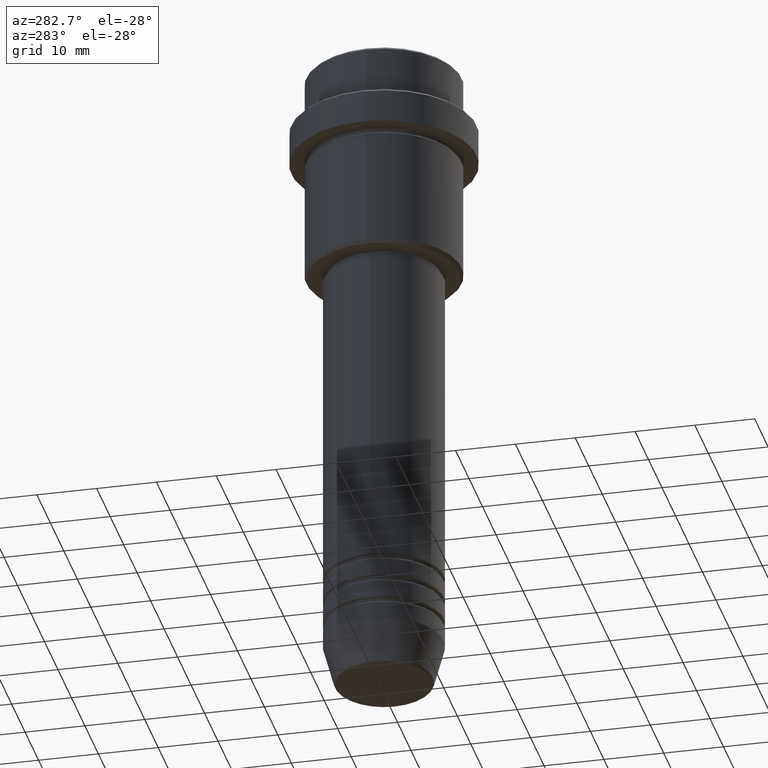
[diagram: clean part render]
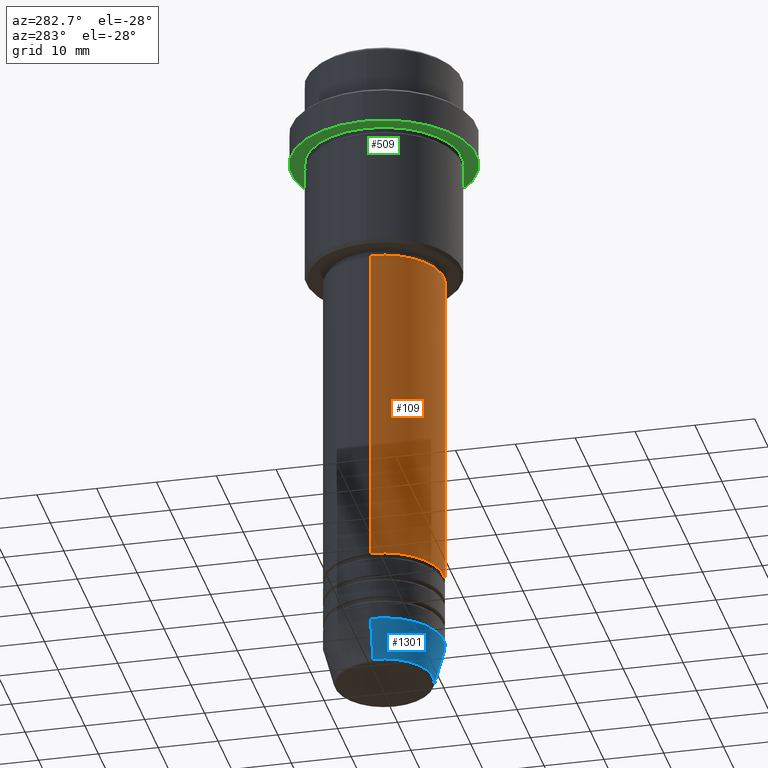
[diagram: same view with three faces highlighted in distinct colors, each labeled with its STEP entity id]
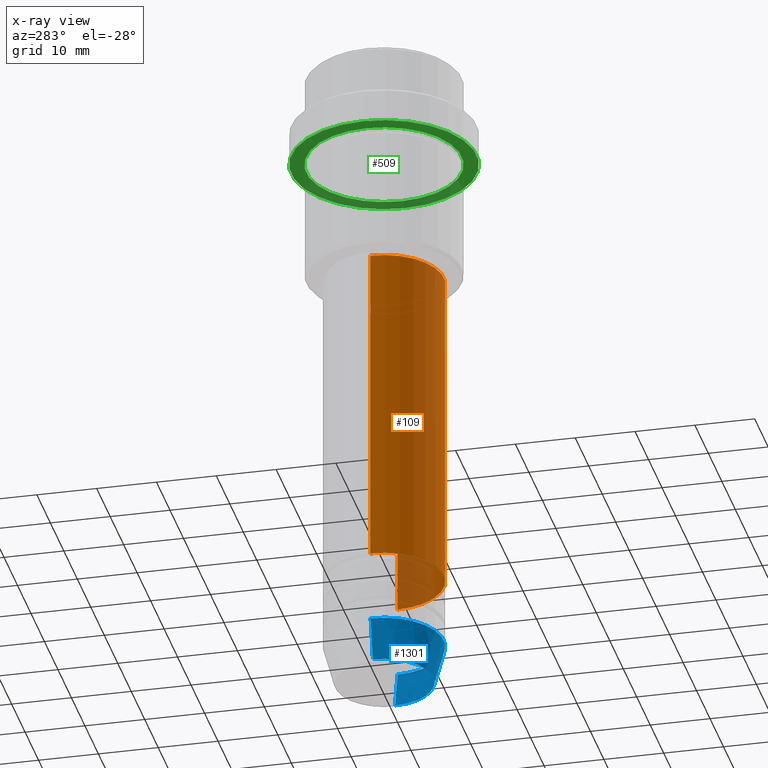
[diagram: x-ray of the same camera — body ghosted, the three highlighted faces saturated]
A machine part, auxiliary view with three faces highlighted in distinct colors.
The next image is the same camera in x-ray (body ghosted, the three faces saturated) — at least one of them is partly hidden behind the body in this view.
Their STEP definitions:

[orange] entity #109 — the highlighted cylindrical surface (partial cylindrical patch) has radius 10 mm, axis along (-0, -0, 1).
#22 = CARTESIAN_POINT ( 'NONE',  ( -10.00000000000000178, 1.224646799147353454E-15, 0.000000000000000000 ) ) ;
#38 = ORIENTED_EDGE ( 'NONE', *, *, #971, .F. ) ;
#85 = AXIS2_PLACEMENT_3D ( 'NONE', #871, #1316, #585 ) ;
#102 = LINE ( 'NONE', #22, #747 ) ;
#109 = ADVANCED_FACE ( 'NONE', ( #1116 ), #471, .T. ) ;
#127 = CARTESIAN_POINT ( 'NONE',  ( 0.000000000000000000, 0.000000000000000000, 0.000000000000000000 ) ) ;
#138 = VERTEX_POINT ( 'NONE', #404 ) ;
#160 = VERTEX_POINT ( 'NONE', #1047 ) ;
#209 = DIRECTION ( 'NONE',  ( -0.000000000000000000, -0.000000000000000000, 1.000000000000000000 ) ) ;
#218 = CARTESIAN_POINT ( 'NONE',  ( 10.00000000000000178, 0.000000000000000000, 0.000000000000000000 ) ) ;
#244 = CARTESIAN_POINT ( 'NONE',  ( -10.00000000000000000, 1.224646799147353256E-15, -91.99999999999988631 ) ) ;
#334 = LINE ( 'NONE', #218, #1257 ) ;
#370 = CIRCLE ( 'NONE', #85, 10.00000000000000178 ) ;
#404 = CARTESIAN_POINT ( 'NONE',  ( -10.00000000000000178, 1.224646799147353454E-15, -37.00000000000002132 ) ) ;
#407 = VERTEX_POINT ( 'NONE', #244 ) ;
#417 = ORIENTED_EDGE ( 'NONE', *, *, #910, .F. ) ;
#454 = DIRECTION ( 'NONE',  ( -0.000000000000000000, -0.000000000000000000, 1.000000000000000000 ) ) ;
#471 = CYLINDRICAL_SURFACE ( 'NONE', #544, 10.00000000000000178 ) ;
#544 = AXIS2_PLACEMENT_3D ( 'NONE', #127, #977, #1209 ) ;
#585 = DIRECTION ( 'NONE',  ( 1.000000000000000000, 0.000000000000000000, 0.000000000000000000 ) ) ;
#656 = DIRECTION ( 'NONE',  ( 1.000000000000000000, 0.000000000000000000, 0.000000000000000000 ) ) ;
#663 = DIRECTION ( 'NONE',  ( -0.000000000000000000, -0.000000000000000000, 1.000000000000000000 ) ) ;
#707 = VERTEX_POINT ( 'NONE', #1361 ) ;
#733 = ORIENTED_EDGE ( 'NONE', *, *, #993, .T. ) ;
#747 = VECTOR ( 'NONE', #454, 1000.000000000000000 ) ;
#871 = CARTESIAN_POINT ( 'NONE',  ( 0.000000000000000000, 0.000000000000000000, -37.00000000000002132 ) ) ;
#878 = CIRCLE ( 'NONE', #1159, 10.00000000000000000 ) ;
#910 = EDGE_CURVE ( 'NONE', #407, #138, #102, .T. ) ;
#952 = EDGE_LOOP ( 'NONE', ( #417, #733, #1070, #38 ) ) ;
#959 = EDGE_CURVE ( 'NONE', #707, #160, #334, .T. ) ;
#971 = EDGE_CURVE ( 'NONE', #138, #160, #370, .T. ) ;
#977 = DIRECTION ( 'NONE',  ( -0.000000000000000000, -0.000000000000000000, 1.000000000000000000 ) ) ;
#993 = EDGE_CURVE ( 'NONE', #407, #707, #878, .T. ) ;
#1047 = CARTESIAN_POINT ( 'NONE',  ( 10.00000000000000178, 0.000000000000000000, -37.00000000000002132 ) ) ;
#1070 = ORIENTED_EDGE ( 'NONE', *, *, #959, .T. ) ;
#1116 = FACE_OUTER_BOUND ( 'NONE', #952, .T. ) ;
#1159 = AXIS2_PLACEMENT_3D ( 'NONE', #1335, #209, #656 ) ;
#1209 = DIRECTION ( 'NONE',  ( 1.000000000000000000, 0.000000000000000000, 0.000000000000000000 ) ) ;
#1257 = VECTOR ( 'NONE', #663, 1000.000000000000000 ) ;
#1316 = DIRECTION ( 'NONE',  ( -0.000000000000000000, -0.000000000000000000, 1.000000000000000000 ) ) ;
#1335 = CARTESIAN_POINT ( 'NONE',  ( 0.000000000000000000, 0.000000000000000000, -91.99999999999988631 ) ) ;
#1361 = CARTESIAN_POINT ( 'NONE',  ( 10.00000000000000000, 0.000000000000000000, -91.99999999999988631 ) ) ;

[blue] entity #1301 — the highlighted conical surface has half-angle 15 deg.
#19 = CARTESIAN_POINT ( 'NONE',  ( 8.223655072137194821, 0.000000000000000000, -110.6294095225512564 ) ) ;
#44 = LINE ( 'NONE', #489, #437 ) ;
#47 = ORIENTED_EDGE ( 'NONE', *, *, #1096, .T. ) ;
#150 = AXIS2_PLACEMENT_3D ( 'NONE', #374, #687, #1112 ) ;
#168 = DIRECTION ( 'NONE',  ( 1.000000000000000000, 0.000000000000000000, 0.000000000000000000 ) ) ;
#199 = AXIS2_PLACEMENT_3D ( 'NONE', #568, #720, #1270 ) ;
#203 = CIRCLE ( 'NONE', #923, 8.223655072137194821 ) ;
#290 = CARTESIAN_POINT ( 'NONE',  ( 10.00000000000000000, 0.000000000000000000, -104.0000000000000000 ) ) ;
#356 = CARTESIAN_POINT ( 'NONE',  ( -10.00000000000000000, 1.224646799147353256E-15, -104.0000000000000000 ) ) ;
#374 = CARTESIAN_POINT ( 'NONE',  ( 0.000000000000000000, 0.000000000000000000, -104.0000000000000000 ) ) ;
#377 = CARTESIAN_POINT ( 'NONE',  ( 0.000000000000000000, 0.000000000000000000, -110.6294095225512564 ) ) ;
#437 = VECTOR ( 'NONE', #818, 1000.000000000000000 ) ;
#487 = EDGE_LOOP ( 'NONE', ( #744, #47, #895, #743 ) ) ;
#489 = CARTESIAN_POINT ( 'NONE',  ( -10.00000000000000000, 1.224646799147353256E-15, -104.0000000000000000 ) ) ;
#501 = VERTEX_POINT ( 'NONE', #356 ) ;
#568 = CARTESIAN_POINT ( 'NONE',  ( 0.000000000000000000, 0.000000000000000000, -104.0000000000000000 ) ) ;
#670 = EDGE_CURVE ( 'NONE', #1376, #501, #44, .T. ) ;
#687 = DIRECTION ( 'NONE',  ( -0.000000000000000000, -0.000000000000000000, 1.000000000000000000 ) ) ;
#713 = VERTEX_POINT ( 'NONE', #290 ) ;
#720 = DIRECTION ( 'NONE',  ( -0.000000000000000000, -0.000000000000000000, 1.000000000000000000 ) ) ;
#743 = ORIENTED_EDGE ( 'NONE', *, *, #1404, .F. ) ;
#744 = ORIENTED_EDGE ( 'NONE', *, *, #670, .F. ) ;
#796 = DIRECTION ( 'NONE',  ( -0.000000000000000000, -0.000000000000000000, 1.000000000000000000 ) ) ;
#818 = DIRECTION ( 'NONE',  ( -0.2588190451025213501, 3.169619151431772337E-17, 0.9659258262890680902 ) ) ;
#881 = CARTESIAN_POINT ( 'NONE',  ( 10.00000000000000000, 0.000000000000000000, -104.0000000000000000 ) ) ;
#895 = ORIENTED_EDGE ( 'NONE', *, *, #925, .T. ) ;
#923 = AXIS2_PLACEMENT_3D ( 'NONE', #377, #796, #168 ) ;
#925 = EDGE_CURVE ( 'NONE', #1386, #713, #997, .T. ) ;
#983 = DIRECTION ( 'NONE',  ( 0.2588190451025213501, 0.000000000000000000, 0.9659258262890680902 ) ) ;
#997 = LINE ( 'NONE', #881, #1108 ) ;
#1071 = FACE_OUTER_BOUND ( 'NONE', #487, .T. ) ;
#1096 = EDGE_CURVE ( 'NONE', #1376, #1386, #203, .T. ) ;
#1108 = VECTOR ( 'NONE', #983, 1000.000000000000000 ) ;
#1112 = DIRECTION ( 'NONE',  ( 1.000000000000000000, 0.000000000000000000, 0.000000000000000000 ) ) ;
#1270 = DIRECTION ( 'NONE',  ( 1.000000000000000000, 0.000000000000000000, 0.000000000000000000 ) ) ;
#1282 = CIRCLE ( 'NONE', #150, 10.00000000000000000 ) ;
#1301 = ADVANCED_FACE ( 'NONE', ( #1071 ), #1343, .T. ) ;
#1343 = CONICAL_SURFACE ( 'NONE', #199, 10.00000000000000000, 0.2617993877991500740 ) ;
#1350 = CARTESIAN_POINT ( 'NONE',  ( -8.223655072137194821, 1.115877042642912251E-15, -110.6294095225512564 ) ) ;
#1376 = VERTEX_POINT ( 'NONE', #1350 ) ;
#1386 = VERTEX_POINT ( 'NONE', #19 ) ;
#1404 = EDGE_CURVE ( 'NONE', #501, #713, #1282, .T. ) ;

[green] entity #509 — the highlighted planar face has unit normal (0, 0, -1).
#1 = DIRECTION ( 'NONE',  ( -1.000000000000000000, 0.000000000000000000, -0.000000000000000000 ) ) ;
#65 = CARTESIAN_POINT ( 'NONE',  ( -15.50000000000000000, 1.898202538678397557E-15, -15.00000000000000178 ) ) ;
#145 = VERTEX_POINT ( 'NONE', #65 ) ;
#155 = EDGE_CURVE ( 'NONE', #145, #758, #1029, .T. ) ;
#186 = CARTESIAN_POINT ( 'NONE',  ( 0.000000000000000000, 0.000000000000000000, -15.00000000000000000 ) ) ;
#329 = DIRECTION ( 'NONE',  ( -0.000000000000000000, -0.000000000000000000, 1.000000000000000000 ) ) ;
#330 = EDGE_CURVE ( 'NONE', #1288, #491, #1359, .T. ) ;
#337 = ORIENTED_EDGE ( 'NONE', *, *, #330, .T. ) ;
#340 = EDGE_CURVE ( 'NONE', #491, #1288, #498, .T. ) ;
#386 = CARTESIAN_POINT ( 'NONE',  ( 0.000000000000000000, 0.000000000000000000, -15.00000000000000178 ) ) ;
#434 = ORIENTED_EDGE ( 'NONE', *, *, #1077, .F. ) ;
#491 = VERTEX_POINT ( 'NONE', #999 ) ;
#498 = CIRCLE ( 'NONE', #679, 12.99999999999999467 ) ;
#509 = ADVANCED_FACE ( 'NONE', ( #1232, #690 ), #1115, .T. ) ;
#528 = CARTESIAN_POINT ( 'NONE',  ( 0.000000000000000000, 0.000000000000000000, -15.00000000000000000 ) ) ;
#539 = CARTESIAN_POINT ( 'NONE',  ( 15.50000000000000000, 0.000000000000000000, -15.00000000000000178 ) ) ;
#593 = CARTESIAN_POINT ( 'NONE',  ( 0.000000000000000000, 15.50000000000000000, -15.00000000000000000 ) ) ;
#633 = DIRECTION ( 'NONE',  ( -1.000000000000000000, 0.000000000000000000, 0.000000000000000000 ) ) ;
#679 = AXIS2_PLACEMENT_3D ( 'NONE', #186, #1172, #633 ) ;
#682 = EDGE_LOOP ( 'NONE', ( #1261, #337 ) ) ;
#690 = FACE_OUTER_BOUND ( 'NONE', #1194, .T. ) ;
#729 = AXIS2_PLACEMENT_3D ( 'NONE', #386, #1145, #1026 ) ;
#758 = VERTEX_POINT ( 'NONE', #539 ) ;
#782 = DIRECTION ( 'NONE',  ( 0.000000000000000000, 0.000000000000000000, -1.000000000000000000 ) ) ;
#831 = CARTESIAN_POINT ( 'NONE',  ( 12.99999999999999467, 1.592040838891558504E-15, -15.00000000000000000 ) ) ;
#890 = AXIS2_PLACEMENT_3D ( 'NONE', #1362, #1038, #1372 ) ;
#982 = AXIS2_PLACEMENT_3D ( 'NONE', #593, #782, #1 ) ;
#999 = CARTESIAN_POINT ( 'NONE',  ( -12.99999999999999467, 0.000000000000000000, -15.00000000000000000 ) ) ;
#1026 = DIRECTION ( 'NONE',  ( 1.000000000000000000, 0.000000000000000000, 0.000000000000000000 ) ) ;
#1029 = CIRCLE ( 'NONE', #890, 15.50000000000000000 ) ;
#1038 = DIRECTION ( 'NONE',  ( -0.000000000000000000, -0.000000000000000000, 1.000000000000000000 ) ) ;
#1049 = ORIENTED_EDGE ( 'NONE', *, *, #155, .F. ) ;
#1077 = EDGE_CURVE ( 'NONE', #758, #145, #1287, .T. ) ;
#1115 = PLANE ( 'NONE',  #982 ) ;
#1145 = DIRECTION ( 'NONE',  ( -0.000000000000000000, -0.000000000000000000, 1.000000000000000000 ) ) ;
#1172 = DIRECTION ( 'NONE',  ( -0.000000000000000000, -0.000000000000000000, 1.000000000000000000 ) ) ;
#1194 = EDGE_LOOP ( 'NONE', ( #434, #1049 ) ) ;
#1232 = FACE_BOUND ( 'NONE', #682, .T. ) ;
#1261 = ORIENTED_EDGE ( 'NONE', *, *, #340, .T. ) ;
#1274 = AXIS2_PLACEMENT_3D ( 'NONE', #528, #329, #1396 ) ;
#1287 = CIRCLE ( 'NONE', #729, 15.50000000000000000 ) ;
#1288 = VERTEX_POINT ( 'NONE', #831 ) ;
#1359 = CIRCLE ( 'NONE', #1274, 12.99999999999999467 ) ;
#1362 = CARTESIAN_POINT ( 'NONE',  ( 0.000000000000000000, 0.000000000000000000, -15.00000000000000178 ) ) ;
#1372 = DIRECTION ( 'NONE',  ( 1.000000000000000000, 0.000000000000000000, 0.000000000000000000 ) ) ;
#1396 = DIRECTION ( 'NONE',  ( -1.000000000000000000, 0.000000000000000000, 0.000000000000000000 ) ) ;